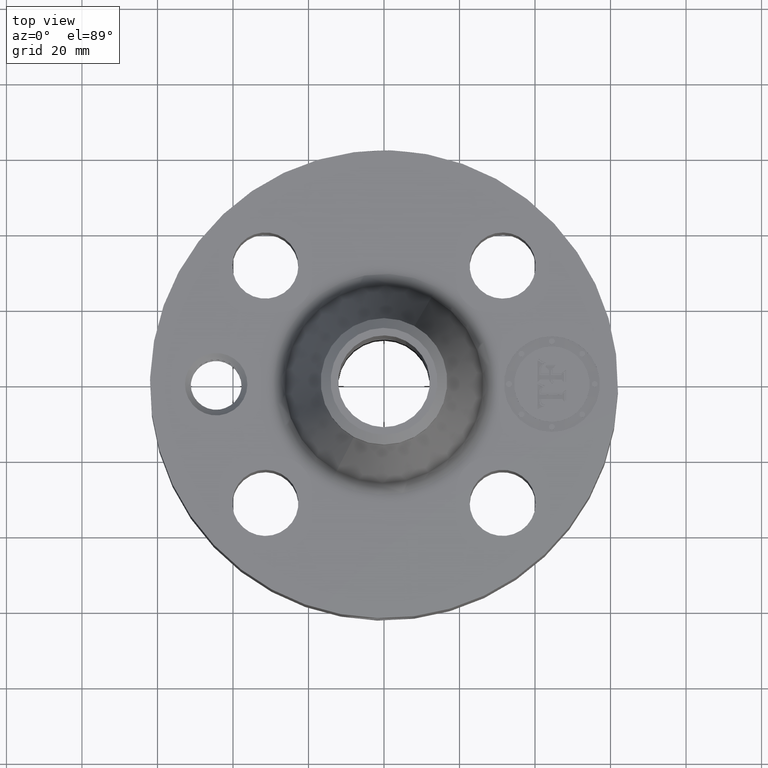
[diagram: clean part render]
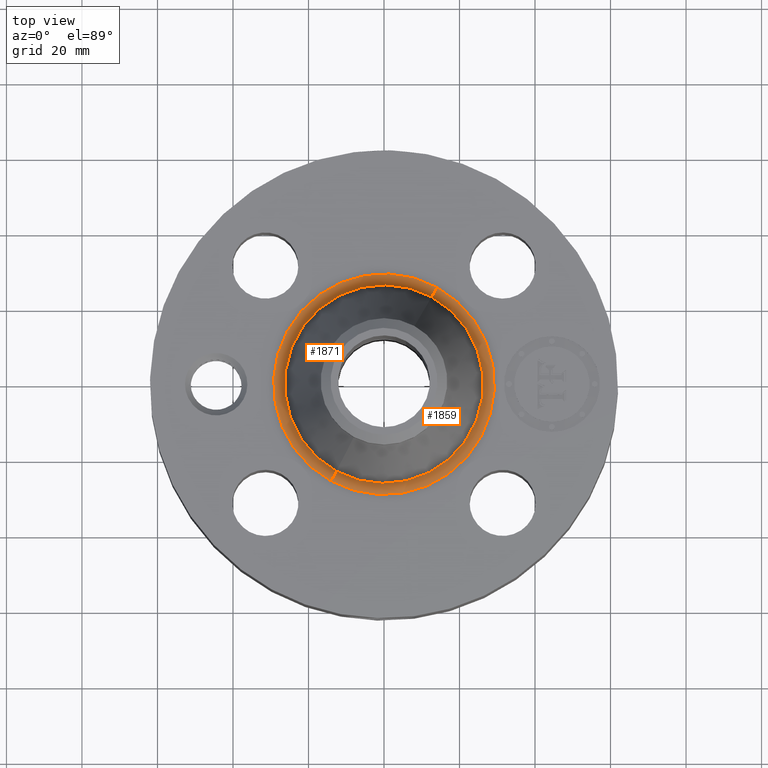
[diagram: same view with one multi-face feature highlighted, each face labeled with its STEP entity id]
A machine part, top view. The highlighted faces form ONE feature: a constant-radius fillet chain: 2 tangent blend faces with common blend radius 3.048 mm. The faces share edges in the B-rep.
Their STEP definitions:
[1] entity #1871 (Torus):
#493=AXIS2_PLACEMENT_3D('Circle Axis2P3D',#491,#492,$) ;
#1832=AXIS2_PLACEMENT_3D('Torus Axis2P3D',#1829,#1830,#1831) ;
#1836=AXIS2_PLACEMENT_3D('Circle Axis2P3D',#1834,#1835,$) ;
#1850=AXIS2_PLACEMENT_3D('Circle Axis2P3D',#1848,#1849,$) ;
#1862=AXIS2_PLACEMENT_3D('Circle Axis2P3D',#1860,#1861,$) ;
#491=CARTESIAN_POINT('Axis2P3D Location',(0.,0.,1.56000000001)) ;
#495=CARTESIAN_POINT('Vertex',(-0.551878272916,-1.01020640245,1.56000000001)) ;
#497=CARTESIAN_POINT('Vertex',(0.551878272916,1.01020640245,1.56000000001)) ;
#1829=CARTESIAN_POINT('Axis2P3D Location',(0.,0.,1.68000000001)) ;
#1834=CARTESIAN_POINT('Axis2P3D Location',(0.551878272916,1.01020640245,1.68000000001)) ;
#1838=CARTESIAN_POINT('Vertex',(0.496460113538,0.908764142151,1.64777740799)) ;
#1845=CARTESIAN_POINT('Vertex',(-0.496460113538,-0.908764142151,1.64777740799)) ;
#1848=CARTESIAN_POINT('Axis2P3D Location',(-0.551878272916,-1.01020640245,1.68000000001)) ;
#1860=CARTESIAN_POINT('Axis2P3D Location',(0.,0.,1.64777740799)) ;
#492=DIRECTION('Axis2P3D Direction',(0.,0.,-0.0393700787402)) ;
#1830=DIRECTION('Axis2P3D Direction',(0.,0.,-0.0393700787402)) ;
#1831=DIRECTION('Axis2P3D XDirection',(-0.0188750212049,-0.0345504945626,0.)) ;
#1835=DIRECTION('Axis2P3D Direction',(-0.0345504945626,0.0188750212049,0.)) ;
#1849=DIRECTION('Axis2P3D Direction',(0.0345504945626,-0.0188750212049,0.)) ;
#1861=DIRECTION('Axis2P3D Direction',(0.,0.,-0.0393700787402)) ;
#1866=ORIENTED_EDGE('',*,*,#499,.F.) ;
#1867=ORIENTED_EDGE('',*,*,#1852,.T.) ;
#1868=ORIENTED_EDGE('',*,*,#1864,.T.) ;
#1869=ORIENTED_EDGE('',*,*,#1840,.F.) ;
#1871=ADVANCED_FACE('PartBody',(#1870),#1833,.F.) ;
#494=CIRCLE('generated circle',#493,1.15112406094) ;
#1837=CIRCLE('generated circle',#1836,0.12) ;
#1851=CIRCLE('generated circle',#1850,0.12) ;
#1863=CIRCLE('generated circle',#1862,1.03553122135) ;
#1833=TOROIDAL_SURFACE('homeo Torus',#1832,1.15112406094,0.12) ;
#499=EDGE_CURVE('',#496,#498,#494,.T.) ;
#1840=EDGE_CURVE('',#498,#1839,#1837,.T.) ;
#1852=EDGE_CURVE('',#496,#1846,#1851,.T.) ;
#1864=EDGE_CURVE('',#1846,#1839,#1863,.T.) ;
#1865=EDGE_LOOP('',(#1866,#1867,#1868,#1869)) ;
#1870=FACE_OUTER_BOUND('',#1865,.T.) ;
#496=VERTEX_POINT('',#495) ;
#498=VERTEX_POINT('',#497) ;
#1839=VERTEX_POINT('',#1838) ;
#1846=VERTEX_POINT('',#1845) ;
[2] entity #1859 (Torus):
#502=AXIS2_PLACEMENT_3D('Circle Axis2P3D',#500,#501,$) ;
#1832=AXIS2_PLACEMENT_3D('Torus Axis2P3D',#1829,#1830,#1831) ;
#1836=AXIS2_PLACEMENT_3D('Circle Axis2P3D',#1834,#1835,$) ;
#1843=AXIS2_PLACEMENT_3D('Circle Axis2P3D',#1841,#1842,$) ;
#1850=AXIS2_PLACEMENT_3D('Circle Axis2P3D',#1848,#1849,$) ;
#495=CARTESIAN_POINT('Vertex',(-0.551878272916,-1.01020640245,1.56000000001)) ;
#497=CARTESIAN_POINT('Vertex',(0.551878272916,1.01020640245,1.56000000001)) ;
#500=CARTESIAN_POINT('Axis2P3D Location',(0.,0.,1.56000000001)) ;
#1829=CARTESIAN_POINT('Axis2P3D Location',(0.,0.,1.68000000001)) ;
#1834=CARTESIAN_POINT('Axis2P3D Location',(0.551878272916,1.01020640245,1.68000000001)) ;
#1838=CARTESIAN_POINT('Vertex',(0.496460113538,0.908764142151,1.64777740799)) ;
#1841=CARTESIAN_POINT('Axis2P3D Location',(0.,0.,1.64777740799)) ;
#1845=CARTESIAN_POINT('Vertex',(-0.496460113538,-0.908764142151,1.64777740799)) ;
#1848=CARTESIAN_POINT('Axis2P3D Location',(-0.551878272916,-1.01020640245,1.68000000001)) ;
#501=DIRECTION('Axis2P3D Direction',(0.,0.,-0.0393700787402)) ;
#1830=DIRECTION('Axis2P3D Direction',(0.,0.,-0.0393700787402)) ;
#1831=DIRECTION('Axis2P3D XDirection',(-0.0188750212049,-0.0345504945626,0.)) ;
#1835=DIRECTION('Axis2P3D Direction',(-0.0345504945626,0.0188750212049,0.)) ;
#1842=DIRECTION('Axis2P3D Direction',(0.,0.,-0.0393700787402)) ;
#1849=DIRECTION('Axis2P3D Direction',(0.0345504945626,-0.0188750212049,0.)) ;
#1854=ORIENTED_EDGE('',*,*,#504,.F.) ;
#1855=ORIENTED_EDGE('',*,*,#1840,.T.) ;
#1856=ORIENTED_EDGE('',*,*,#1847,.T.) ;
#1857=ORIENTED_EDGE('',*,*,#1852,.F.) ;
#1859=ADVANCED_FACE('PartBody',(#1858),#1833,.F.) ;
#503=CIRCLE('generated circle',#502,1.15112406094) ;
#1837=CIRCLE('generated circle',#1836,0.12) ;
#1844=CIRCLE('generated circle',#1843,1.03553122135) ;
#1851=CIRCLE('generated circle',#1850,0.12) ;
#1833=TOROIDAL_SURFACE('homeo Torus',#1832,1.15112406094,0.12) ;
#504=EDGE_CURVE('',#498,#496,#503,.T.) ;
#1840=EDGE_CURVE('',#498,#1839,#1837,.T.) ;
#1847=EDGE_CURVE('',#1839,#1846,#1844,.T.) ;
#1852=EDGE_CURVE('',#496,#1846,#1851,.T.) ;
#1853=EDGE_LOOP('',(#1854,#1855,#1856,#1857)) ;
#1858=FACE_OUTER_BOUND('',#1853,.T.) ;
#496=VERTEX_POINT('',#495) ;
#498=VERTEX_POINT('',#497) ;
#1839=VERTEX_POINT('',#1838) ;
#1846=VERTEX_POINT('',#1845) ;